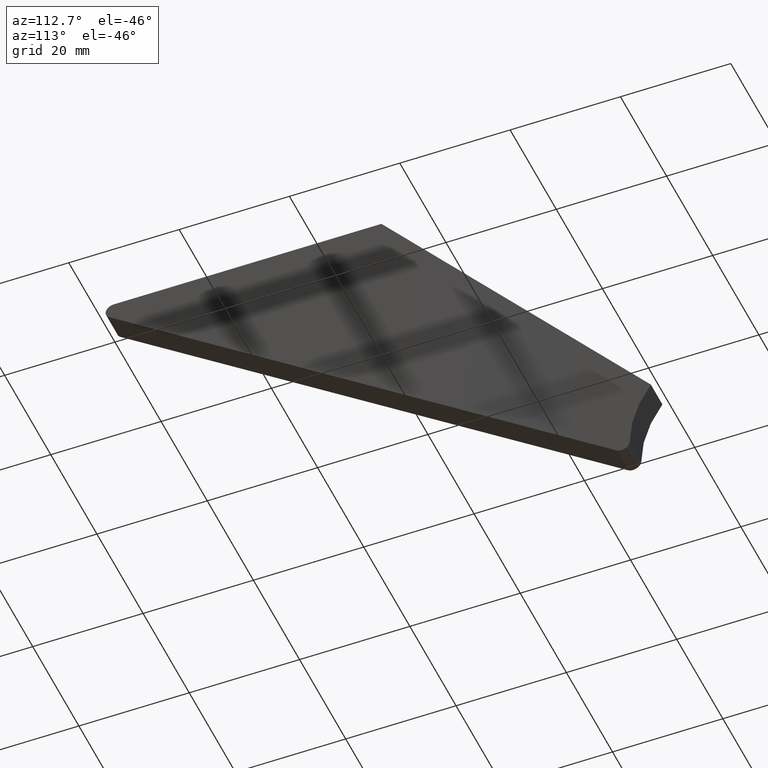
[diagram: clean part render]
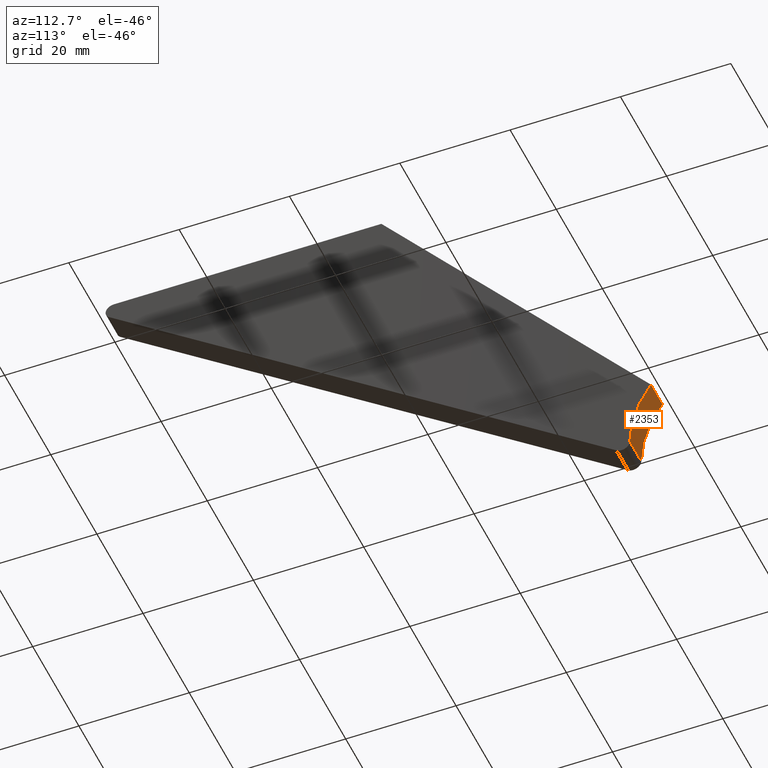
[diagram: same view with one face highlighted and labeled with its STEP entity id]
A machine part, auxiliary view. The second image highlights one B-rep face of the part: STEP entity #2353.
In plain terms, the highlighted cylindrical surface (partial cylindrical patch) has radius 21.2 mm, axis along (1, -0, -0).
Its self-contained STEP definition (entity closure, byte-faithful):
#254 = CARTESIAN_POINT ( 'NONE',  ( -2.500000000000000000, 73.09783299600437090, -58.21457957381940673 ) ) ;
#279 = DIRECTION ( 'NONE',  ( 0.000000000000000000, 0.000000000000000000, -1.000000000000000000 ) ) ;
#645 = LINE ( 'NONE', #4070, #6709 ) ;
#1471 = VERTEX_POINT ( 'NONE', #1697 ) ;
#1697 = CARTESIAN_POINT ( 'NONE',  ( 2.500000000000000000, 73.09783299600437090, -58.21457957381940673 ) ) ;
#2252 = EDGE_LOOP ( 'NONE', ( #4626, #11386, #4867, #4722 ) ) ;
#2353 = ADVANCED_FACE ( 'NONE', ( #8093 ), #9915, .F. ) ;
#2388 = CARTESIAN_POINT ( 'NONE',  ( -2.500000000000000000, 90.47316802908825650, -70.36109069792773596 ) ) ;
#2748 = DIRECTION ( 'NONE',  ( 0.000000000000000000, 0.000000000000000000, 1.000000000000000000 ) ) ;
#3161 = EDGE_CURVE ( 'NONE', #10443, #12429, #13531, .T. ) ;
#3348 = AXIS2_PLACEMENT_3D ( 'NONE', #5481, #5429, #9740 ) ;
#4070 = CARTESIAN_POINT ( 'NONE',  ( -2.500000000000000000, 69.27317192011976488, -70.37393514111622039 ) ) ;
#4626 = ORIENTED_EDGE ( 'NONE', *, *, #5315, .F. ) ;
#4722 = ORIENTED_EDGE ( 'NONE', *, *, #5254, .T. ) ;
#4867 = ORIENTED_EDGE ( 'NONE', *, *, #3161, .T. ) ;
#5254 = EDGE_CURVE ( 'NONE', #12429, #1471, #9172, .T. ) ;
#5315 = EDGE_CURVE ( 'NONE', #5629, #1471, #8481, .T. ) ;
#5429 = DIRECTION ( 'NONE',  ( -1.000000000000000000, 0.000000000000000000, 0.000000000000000000 ) ) ;
#5481 = CARTESIAN_POINT ( 'NONE',  ( -2.500000000000000000, 90.47316802908825650, -70.36109069792773596 ) ) ;
#5629 = VERTEX_POINT ( 'NONE', #9517 ) ;
#5756 = DIRECTION ( 'NONE',  ( -1.000000000000000000, 0.000000000000000000, 0.000000000000000000 ) ) ;
#5802 = CARTESIAN_POINT ( 'NONE',  ( 2.500000000000000000, 90.47316802908825650, -70.36109069792773596 ) ) ;
#6006 = AXIS2_PLACEMENT_3D ( 'NONE', #2388, #9707, #279 ) ;
#6027 = DIRECTION ( 'NONE',  ( 1.000000000000000000, -0.000000000000000000, -0.000000000000000000 ) ) ;
#6086 = VECTOR ( 'NONE', #13194, 1000.000000000000000 ) ;
#6709 = VECTOR ( 'NONE', #6027, 1000.000000000000000 ) ;
#7047 = CARTESIAN_POINT ( 'NONE',  ( -2.500000000000000000, 69.27317192011976488, -70.37393514111622039 ) ) ;
#8093 = FACE_OUTER_BOUND ( 'NONE', #2252, .T. ) ;
#8481 = CIRCLE ( 'NONE', #10125, 21.19999999999998863 ) ;
#9042 = CARTESIAN_POINT ( 'NONE',  ( -2.500000000000000000, 73.09783299600437090, -58.21457957381940673 ) ) ;
#9172 = LINE ( 'NONE', #9042, #6086 ) ;
#9517 = CARTESIAN_POINT ( 'NONE',  ( 2.500000000000000000, 69.27317192011976488, -70.37393514111622039 ) ) ;
#9707 = DIRECTION ( 'NONE',  ( 1.000000000000000000, -0.000000000000000000, -0.000000000000000000 ) ) ;
#9740 = DIRECTION ( 'NONE',  ( 0.000000000000000000, 0.000000000000000000, 1.000000000000000000 ) ) ;
#9915 = CYLINDRICAL_SURFACE ( 'NONE', #6006, 21.19999999999999574 ) ;
#10125 = AXIS2_PLACEMENT_3D ( 'NONE', #5802, #5756, #2748 ) ;
#10443 = VERTEX_POINT ( 'NONE', #7047 ) ;
#11386 = ORIENTED_EDGE ( 'NONE', *, *, #13542, .F. ) ;
#12429 = VERTEX_POINT ( 'NONE', #254 ) ;
#13194 = DIRECTION ( 'NONE',  ( 1.000000000000000000, -0.000000000000000000, -0.000000000000000000 ) ) ;
#13531 = CIRCLE ( 'NONE', #3348, 21.19999999999998863 ) ;
#13542 = EDGE_CURVE ( 'NONE', #10443, #5629, #645, .T. ) ;